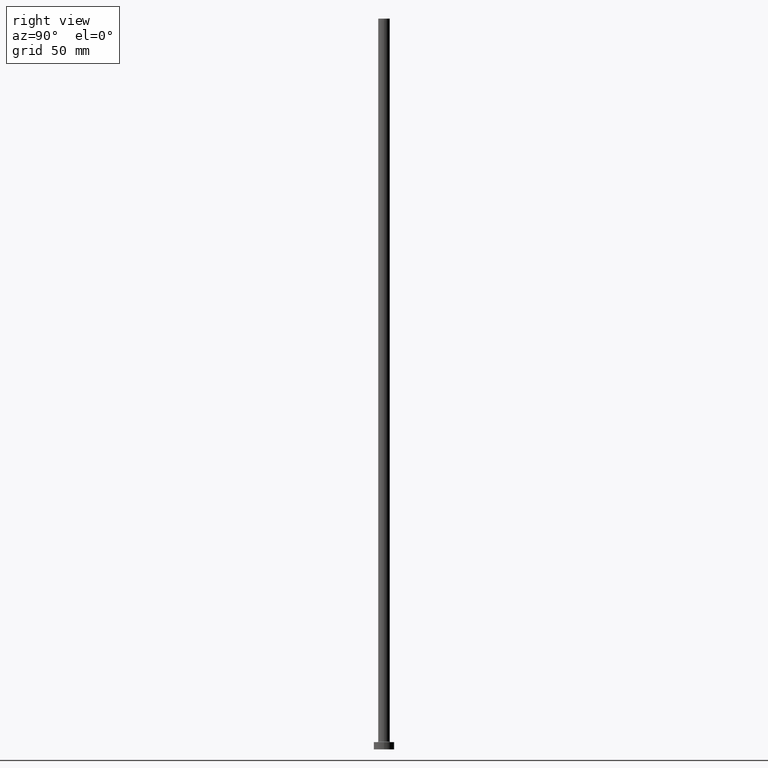
[diagram: clean part render]
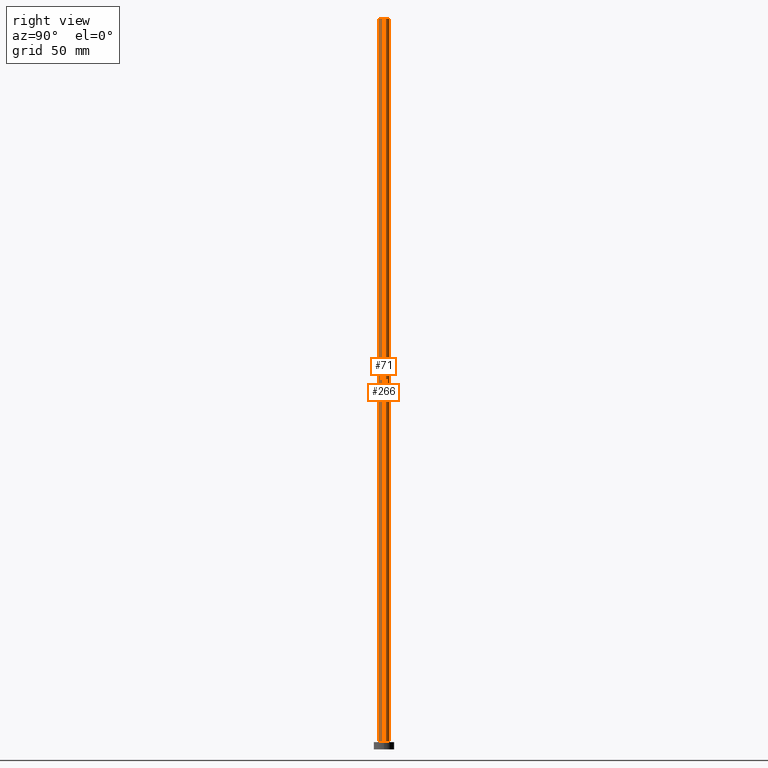
[diagram: same view with one multi-face feature highlighted, each face labeled with its STEP entity id]
A machine part, right view. The highlighted faces form ONE feature: a constant-radius fillet chain: 2 tangent blend faces with common blend radius 4 mm. The faces share edges in the B-rep.
Their STEP definitions:
[1] entity #71 (Cylinder):
#9 = DIRECTION ( 'NONE',  ( 0.000000000000000000, 0.000000000000000000, 1.000000000000000000 ) ) ;
#28 = VECTOR ( 'NONE', #237, 1000.000000000000000 ) ;
#71 = ADVANCED_FACE ( 'NONE', ( #256 ), #154, .T. ) ;
#72 = DIRECTION ( 'NONE',  ( -0.000000000000000000, -0.000000000000000000, -1.000000000000000000 ) ) ;
#95 = VERTEX_POINT ( 'NONE', #161 ) ;
#96 = VERTEX_POINT ( 'NONE', #294 ) ;
#97 = AXIS2_PLACEMENT_3D ( 'NONE', #283, #169, #348 ) ;
#103 = LINE ( 'NONE', #243, #28 ) ;
#120 = DIRECTION ( 'NONE',  ( -0.000000000000000000, -0.000000000000000000, -1.000000000000000000 ) ) ;
#130 = VECTOR ( 'NONE', #72, 1000.000000000000000 ) ;
#154 = CYLINDRICAL_SURFACE ( 'NONE', #414, 4.000000000000000000 ) ;
#161 = CARTESIAN_POINT ( 'NONE',  ( 4.000000000000000000, 4.898587196589412829E-16, 5.500000000000005329 ) ) ;
#169 = DIRECTION ( 'NONE',  ( 0.000000000000000000, 0.000000000000000000, 1.000000000000000000 ) ) ;
#174 = ORIENTED_EDGE ( 'NONE', *, *, #377, .T. ) ;
#178 = CARTESIAN_POINT ( 'NONE',  ( 4.000000000000000000, 4.898587196589412829E-16, 500.0000000000000000 ) ) ;
#180 = CIRCLE ( 'NONE', #431, 4.000000000000000000 ) ;
#188 = DIRECTION ( 'NONE',  ( 1.000000000000000000, 0.000000000000000000, 0.000000000000000000 ) ) ;
#231 = EDGE_CURVE ( 'NONE', #389, #375, #180, .T. ) ;
#237 = DIRECTION ( 'NONE',  ( -0.000000000000000000, -0.000000000000000000, -1.000000000000000000 ) ) ;
#243 = CARTESIAN_POINT ( 'NONE',  ( -4.000000000000000000, 0.000000000000000000, 500.0000000000000000 ) ) ;
#246 = LINE ( 'NONE', #394, #130 ) ;
#256 = FACE_OUTER_BOUND ( 'NONE', #358, .T. ) ;
#283 = CARTESIAN_POINT ( 'NONE',  ( 0.000000000000000000, 0.000000000000000000, 5.500000000000005329 ) ) ;
#293 = ORIENTED_EDGE ( 'NONE', *, *, #231, .F. ) ;
#294 = CARTESIAN_POINT ( 'NONE',  ( -4.000000000000000000, 0.000000000000000000, 5.500000000000005329 ) ) ;
#305 = CARTESIAN_POINT ( 'NONE',  ( -4.000000000000000000, 0.000000000000000000, 500.0000000000000000 ) ) ;
#324 = EDGE_CURVE ( 'NONE', #389, #96, #103, .T. ) ;
#336 = DIRECTION ( 'NONE',  ( -1.000000000000000000, 0.000000000000000000, 0.000000000000000000 ) ) ;
#348 = DIRECTION ( 'NONE',  ( 1.000000000000000000, 0.000000000000000000, 0.000000000000000000 ) ) ;
#358 = EDGE_LOOP ( 'NONE', ( #419, #293, #382, #174 ) ) ;
#369 = CARTESIAN_POINT ( 'NONE',  ( 0.000000000000000000, 0.000000000000000000, 500.0000000000000000 ) ) ;
#375 = VERTEX_POINT ( 'NONE', #178 ) ;
#377 = EDGE_CURVE ( 'NONE', #96, #95, #409, .T. ) ;
#378 = CARTESIAN_POINT ( 'NONE',  ( 0.000000000000000000, 0.000000000000000000, 500.0000000000000000 ) ) ;
#382 = ORIENTED_EDGE ( 'NONE', *, *, #324, .T. ) ;
#389 = VERTEX_POINT ( 'NONE', #305 ) ;
#394 = CARTESIAN_POINT ( 'NONE',  ( 4.000000000000000000, 4.898587196589412829E-16, 500.0000000000000000 ) ) ;
#409 = CIRCLE ( 'NONE', #97, 4.000000000000000000 ) ;
#414 = AXIS2_PLACEMENT_3D ( 'NONE', #369, #120, #336 ) ;
#419 = ORIENTED_EDGE ( 'NONE', *, *, #451, .F. ) ;
#431 = AXIS2_PLACEMENT_3D ( 'NONE', #378, #9, #188 ) ;
#451 = EDGE_CURVE ( 'NONE', #375, #95, #246, .T. ) ;
[2] entity #266 (Cylinder):
#28 = VECTOR ( 'NONE', #237, 1000.000000000000000 ) ;
#35 = CYLINDRICAL_SURFACE ( 'NONE', #227, 4.000000000000000000 ) ;
#72 = DIRECTION ( 'NONE',  ( -0.000000000000000000, -0.000000000000000000, -1.000000000000000000 ) ) ;
#92 = ORIENTED_EDGE ( 'NONE', *, *, #451, .T. ) ;
#95 = VERTEX_POINT ( 'NONE', #161 ) ;
#96 = VERTEX_POINT ( 'NONE', #294 ) ;
#103 = LINE ( 'NONE', #243, #28 ) ;
#130 = VECTOR ( 'NONE', #72, 1000.000000000000000 ) ;
#139 = DIRECTION ( 'NONE',  ( -0.000000000000000000, -0.000000000000000000, -1.000000000000000000 ) ) ;
#151 = ORIENTED_EDGE ( 'NONE', *, *, #324, .F. ) ;
#161 = CARTESIAN_POINT ( 'NONE',  ( 4.000000000000000000, 4.898587196589412829E-16, 5.500000000000005329 ) ) ;
#162 = EDGE_LOOP ( 'NONE', ( #201, #92, #210, #151 ) ) ;
#175 = CARTESIAN_POINT ( 'NONE',  ( 0.000000000000000000, 0.000000000000000000, 5.500000000000005329 ) ) ;
#178 = CARTESIAN_POINT ( 'NONE',  ( 4.000000000000000000, 4.898587196589412829E-16, 500.0000000000000000 ) ) ;
#181 = CARTESIAN_POINT ( 'NONE',  ( 0.000000000000000000, 0.000000000000000000, 500.0000000000000000 ) ) ;
#195 = EDGE_CURVE ( 'NONE', #375, #389, #298, .T. ) ;
#199 = DIRECTION ( 'NONE',  ( 0.000000000000000000, 0.000000000000000000, 1.000000000000000000 ) ) ;
#201 = ORIENTED_EDGE ( 'NONE', *, *, #195, .F. ) ;
#210 = ORIENTED_EDGE ( 'NONE', *, *, #352, .T. ) ;
#227 = AXIS2_PLACEMENT_3D ( 'NONE', #307, #139, #244 ) ;
#237 = DIRECTION ( 'NONE',  ( -0.000000000000000000, -0.000000000000000000, -1.000000000000000000 ) ) ;
#243 = CARTESIAN_POINT ( 'NONE',  ( -4.000000000000000000, 0.000000000000000000, 500.0000000000000000 ) ) ;
#244 = DIRECTION ( 'NONE',  ( -1.000000000000000000, 0.000000000000000000, 0.000000000000000000 ) ) ;
#246 = LINE ( 'NONE', #394, #130 ) ;
#266 = ADVANCED_FACE ( 'NONE', ( #437 ), #35, .T. ) ;
#282 = DIRECTION ( 'NONE',  ( 0.000000000000000000, 0.000000000000000000, 1.000000000000000000 ) ) ;
#294 = CARTESIAN_POINT ( 'NONE',  ( -4.000000000000000000, 0.000000000000000000, 5.500000000000005329 ) ) ;
#298 = CIRCLE ( 'NONE', #340, 4.000000000000000000 ) ;
#305 = CARTESIAN_POINT ( 'NONE',  ( -4.000000000000000000, 0.000000000000000000, 500.0000000000000000 ) ) ;
#307 = CARTESIAN_POINT ( 'NONE',  ( 0.000000000000000000, 0.000000000000000000, 500.0000000000000000 ) ) ;
#324 = EDGE_CURVE ( 'NONE', #389, #96, #103, .T. ) ;
#340 = AXIS2_PLACEMENT_3D ( 'NONE', #181, #282, #390 ) ;
#352 = EDGE_CURVE ( 'NONE', #95, #96, #442, .T. ) ;
#375 = VERTEX_POINT ( 'NONE', #178 ) ;
#389 = VERTEX_POINT ( 'NONE', #305 ) ;
#390 = DIRECTION ( 'NONE',  ( 1.000000000000000000, 0.000000000000000000, 0.000000000000000000 ) ) ;
#394 = CARTESIAN_POINT ( 'NONE',  ( 4.000000000000000000, 4.898587196589412829E-16, 500.0000000000000000 ) ) ;
#401 = AXIS2_PLACEMENT_3D ( 'NONE', #175, #199, #461 ) ;
#437 = FACE_OUTER_BOUND ( 'NONE', #162, .T. ) ;
#442 = CIRCLE ( 'NONE', #401, 4.000000000000000000 ) ;
#451 = EDGE_CURVE ( 'NONE', #375, #95, #246, .T. ) ;
#461 = DIRECTION ( 'NONE',  ( 1.000000000000000000, 0.000000000000000000, 0.000000000000000000 ) ) ;